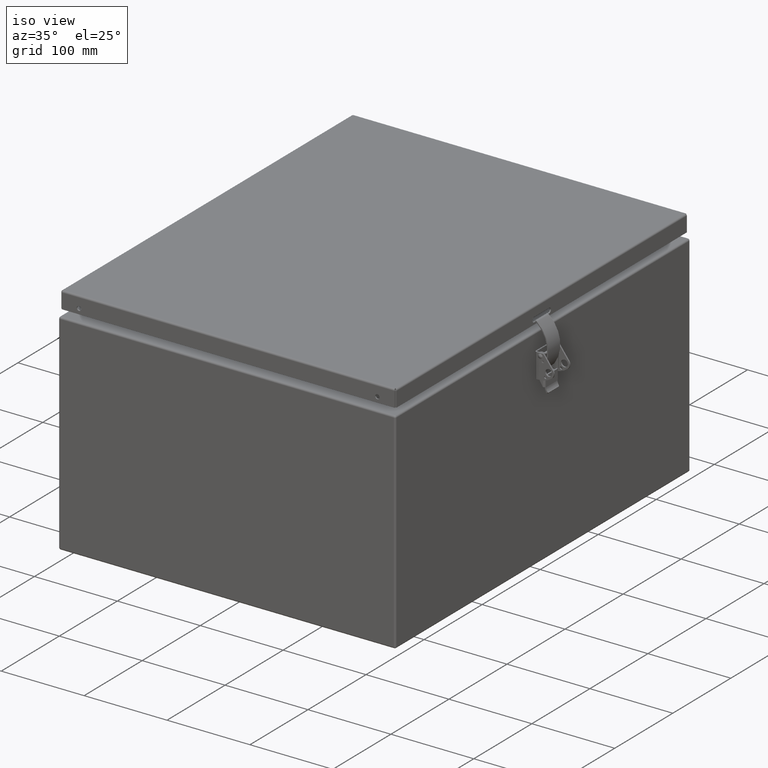
[diagram: clean part render]
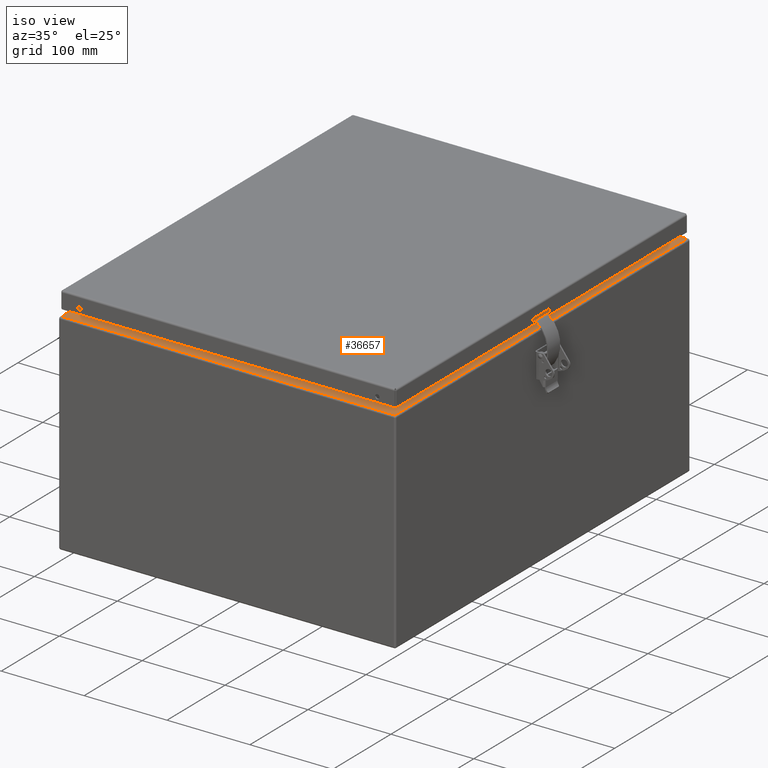
[diagram: same view with one face highlighted and labeled with its STEP entity id]
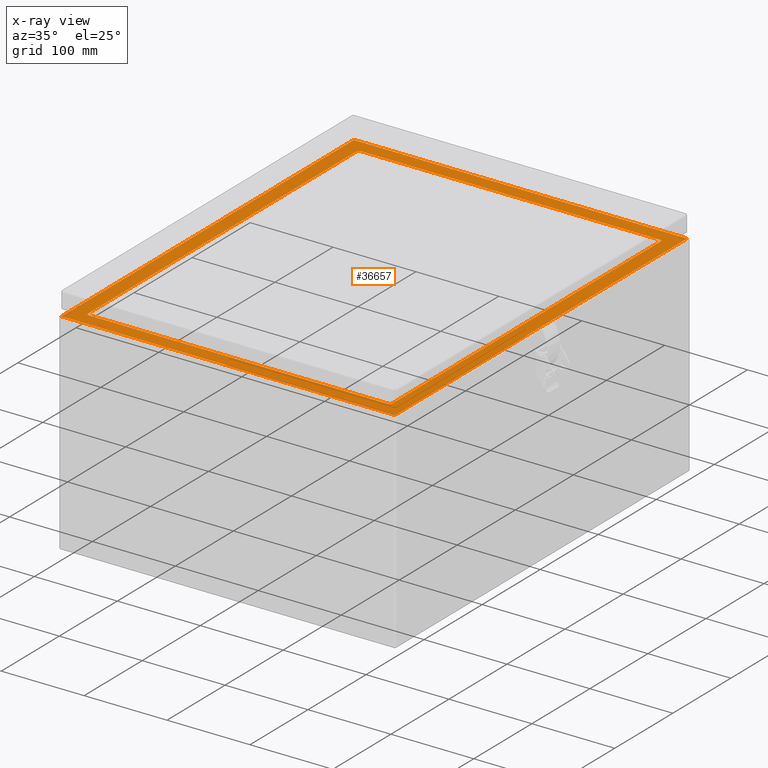
[diagram: x-ray of the same camera — body ghosted, the highlighted face saturated]
A machine part, iso view. The second image highlights one B-rep face of the part: STEP entity #36657.
The next image is the same camera in x-ray: the body ghosted, the highlighted face saturated — about 0% of this face is hidden behind the body in this view.
In plain terms, the highlighted planar face has unit normal (-0, -0, 1).
Its self-contained STEP definition (entity closure, byte-faithful):
#665=FACE_BOUND('',#11019,.T.);
#3598=LINE('',#52459,#5795);
#3600=LINE('',#52467,#5797);
#3601=LINE('',#52468,#5798);
#3605=LINE('',#52488,#5802);
#3614=LINE('',#52518,#5811);
#3615=LINE('',#52519,#5812);
#3645=LINE('',#52666,#5842);
#3646=LINE('',#52667,#5843);
#3647=LINE('',#52668,#5844);
#3648=LINE('',#52669,#5845);
#5795=VECTOR('',#43251,0.393700787401575);
#5797=VECTOR('',#43259,0.393700787401575);
#5798=VECTOR('',#43260,0.393700787401575);
#5802=VECTOR('',#43284,0.393700787401575);
#5811=VECTOR('',#43315,0.393700787401575);
#5812=VECTOR('',#43316,0.393700787401575);
#5842=VECTOR('',#43480,0.393700787401575);
#5843=VECTOR('',#43481,0.393700787401575);
#5844=VECTOR('',#43482,0.393700787401575);
#5845=VECTOR('',#43483,0.393700787401575);
#8723=FACE_OUTER_BOUND('',#11018,.T.);
#11018=EDGE_LOOP('',(#24654,#24655,#24656,#24657,#24658,#24659));
#11019=EDGE_LOOP('',(#24660,#24661,#24662,#24663,#24664,#24665,#24666,#24667));
#13463=CIRCLE('',#39782,0.115);
#13466=CIRCLE('',#39787,0.115);
#13469=CIRCLE('',#39791,0.115);
#13472=CIRCLE('',#39795,0.115);
#14934=VERTEX_POINT('',#52438);
#14940=VERTEX_POINT('',#52458);
#14942=VERTEX_POINT('',#52464);
#14943=VERTEX_POINT('',#52466);
#14949=VERTEX_POINT('',#52486);
#14959=VERTEX_POINT('',#52517);
#14993=VERTEX_POINT('',#52611);
#14995=VERTEX_POINT('',#52615);
#14996=VERTEX_POINT('',#52622);
#14997=VERTEX_POINT('',#52624);
#14998=VERTEX_POINT('',#52628);
#14999=VERTEX_POINT('',#52630);
#15000=VERTEX_POINT('',#52634);
#15001=VERTEX_POINT('',#52636);
#18618=EDGE_CURVE('',#14934,#14940,#3598,.T.);
#18622=EDGE_CURVE('',#14942,#14943,#3600,.T.);
#18623=EDGE_CURVE('',#14943,#14934,#3601,.T.);
#18633=EDGE_CURVE('',#14949,#14942,#3605,.T.);
#18648=EDGE_CURVE('',#14940,#14959,#3614,.T.);
#18649=EDGE_CURVE('',#14949,#14959,#3615,.T.);
#18697=EDGE_CURVE('',#14995,#14993,#13463,.T.);
#18702=EDGE_CURVE('',#14997,#14996,#13466,.T.);
#18705=EDGE_CURVE('',#14999,#14998,#13469,.T.);
#18708=EDGE_CURVE('',#15001,#15000,#13472,.T.);
#18723=EDGE_CURVE('',#14996,#14995,#3645,.T.);
#18724=EDGE_CURVE('',#15000,#14997,#3646,.T.);
#18725=EDGE_CURVE('',#14998,#15001,#3647,.T.);
#18726=EDGE_CURVE('',#14993,#14999,#3648,.T.);
#24654=ORIENTED_EDGE('',*,*,#18622,.F.);
#24655=ORIENTED_EDGE('',*,*,#18633,.F.);
#24656=ORIENTED_EDGE('',*,*,#18649,.T.);
#24657=ORIENTED_EDGE('',*,*,#18648,.F.);
#24658=ORIENTED_EDGE('',*,*,#18618,.F.);
#24659=ORIENTED_EDGE('',*,*,#18623,.F.);
#24660=ORIENTED_EDGE('',*,*,#18697,.F.);
#24661=ORIENTED_EDGE('',*,*,#18723,.F.);
#24662=ORIENTED_EDGE('',*,*,#18702,.F.);
#24663=ORIENTED_EDGE('',*,*,#18724,.F.);
#24664=ORIENTED_EDGE('',*,*,#18708,.F.);
#24665=ORIENTED_EDGE('',*,*,#18725,.F.);
#24666=ORIENTED_EDGE('',*,*,#18705,.F.);
#24667=ORIENTED_EDGE('',*,*,#18726,.F.);
#35924=PLANE('',#39804);
#36657=ADVANCED_FACE('',(#8723,#665),#35924,.T.);
#39782=AXIS2_PLACEMENT_3D('',#52617,#43422,#43423);
#39787=AXIS2_PLACEMENT_3D('',#52626,#43434,#43435);
#39791=AXIS2_PLACEMENT_3D('',#52632,#43442,#43443);
#39795=AXIS2_PLACEMENT_3D('',#52638,#43450,#43451);
#39804=AXIS2_PLACEMENT_3D('',#52665,#43478,#43479);
#43251=DIRECTION('',(0.,1.,1.50660589992524E-16));
#43259=DIRECTION('',(-1.,2.00877542703185E-16,-2.00877542703185E-16));
#43260=DIRECTION('',(-1.,3.65333701606699E-12,-1.78769426893764E-14));
#43284=DIRECTION('',(0.,-1.,-1.50657494248956E-16));
#43315=DIRECTION('',(1.,-3.65333701905265E-12,1.78769426893764E-14));
#43316=DIRECTION('',(-1.,-8.3797652503446E-33,-4.2224597280414E-18));
#43422=DIRECTION('center_axis',(-1.7876942689377E-14,-1.51408232982902E-16,
1.));
#43423=DIRECTION('ref_axis',(0.707106781186544,-0.707106781186551,1.2533845614272E-14));
#43434=DIRECTION('center_axis',(-1.7876942689377E-14,-1.51408232982902E-16,
1.));
#43435=DIRECTION('ref_axis',(-0.707106781186551,-0.707106781186544,-1.27479691908115E-14));
#43442=DIRECTION('center_axis',(-1.7876942689377E-14,-1.51408232982902E-16,
1.));
#43443=DIRECTION('ref_axis',(0.707106781186527,0.707106781186567,1.27479691908111E-14));
#43450=DIRECTION('center_axis',(-1.7876942689377E-14,-1.51408232982902E-16,
1.));
#43451=DIRECTION('ref_axis',(-0.707106781186551,0.707106781186544,-1.25338456142721E-14));
#43478=DIRECTION('center_axis',(-1.7876942689377E-14,-1.51408232982902E-16,
1.));
#43479=DIRECTION('ref_axis',(1.,0.,1.7876942689377E-14));
#43480=DIRECTION('',(1.,-2.00877542703185E-16,2.00877542703185E-16));
#43481=DIRECTION('',(0.,-1.,-1.50660589992524E-16));
#43482=DIRECTION('',(-1.,0.,2.00878249700088E-16));
#43483=DIRECTION('',(0.,1.,1.50657494248956E-16));
#52438=CARTESIAN_POINT('',(-7.91600000000005,-9.91599999999998,9.99999999999971));
#52458=CARTESIAN_POINT('',(-7.91600000000031,9.91600000005483,9.99999999999971));
#52459=CARTESIAN_POINT('',(-7.91600000000005,-51.1638977098686,9.99999999999999));
#52464=CARTESIAN_POINT('',(7.9160000000003,-9.91600000000311,10.));
#52466=CARTESIAN_POINT('',(-7.83200000000006,-9.91600000000005,9.99999999999999));
#52467=CARTESIAN_POINT('',(52.1647972515942,-9.91600000000006,10.));
#52468=CARTESIAN_POINT('',(7.32255175828684,-9.91600000000095,9.99999999999998));
#52486=CARTESIAN_POINT('',(7.91600000000005,9.916,10.));
#52488=CARTESIAN_POINT('',(7.91600000000005,51.3738277391863,10.));
#52517=CARTESIAN_POINT('',(-7.83200000000005,9.91600000000005,10.));
#52518=CARTESIAN_POINT('',(7.32255175832276,9.91599999999916,9.99999999999999));
#52519=CARTESIAN_POINT('',(6.54860252199871E-17,9.91600000000005,9.99999999999999));
#52611=CARTESIAN_POINT('',(7.21785826771653,-9.10285826771653,10.));
#52615=CARTESIAN_POINT('',(7.10285826771653,-9.21785826771653,10.));
#52617=CARTESIAN_POINT('Origin',(7.10285826771659,-9.10285826771659,9.99999999999998));
#52622=CARTESIAN_POINT('',(-7.10285826771654,-9.21785826771653,10.));
#52624=CARTESIAN_POINT('',(-7.21785826771654,-9.10285826771653,10.));
#52626=CARTESIAN_POINT('Origin',(-7.10285826771659,-9.10285826771659,9.99999999999973));
#52628=CARTESIAN_POINT('',(7.10285826771653,9.21785826771653,10.));
#52630=CARTESIAN_POINT('',(7.21785826771653,9.10285826771653,10.));
#52632=CARTESIAN_POINT('Origin',(7.10285826771659,9.10285826771658,9.99999999999998));
#52634=CARTESIAN_POINT('',(-7.21785826771654,9.10285826771653,10.));
#52636=CARTESIAN_POINT('',(-7.10285826771654,9.21785826771653,10.));
#52638=CARTESIAN_POINT('Origin',(-7.10285826771659,9.10285826771658,9.99999999999973));
#52665=CARTESIAN_POINT('Origin',(7.56692913385832,0.,9.99999999999999));
#52666=CARTESIAN_POINT('',(-52.1647972515942,-9.21785826771658,10.));
#52667=CARTESIAN_POINT('',(-7.21785826771659,51.1638977098686,9.99999999999999));
#52668=CARTESIAN_POINT('',(52.0618512003118,9.21785826771659,9.99999999999999));
#52669=CARTESIAN_POINT('',(7.21785826771659,-51.0622923061154,9.99999999999998));